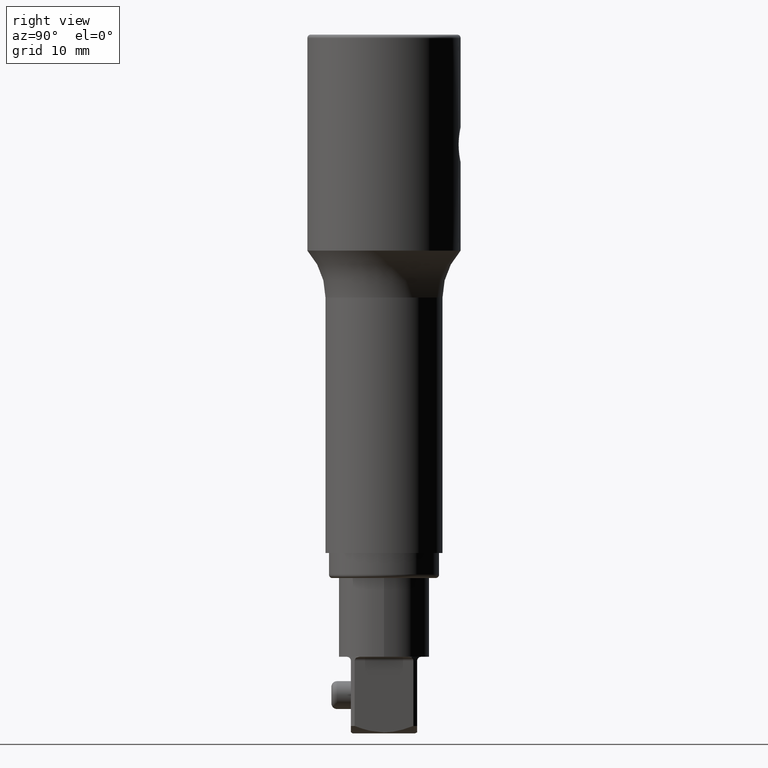
[diagram: clean part render]
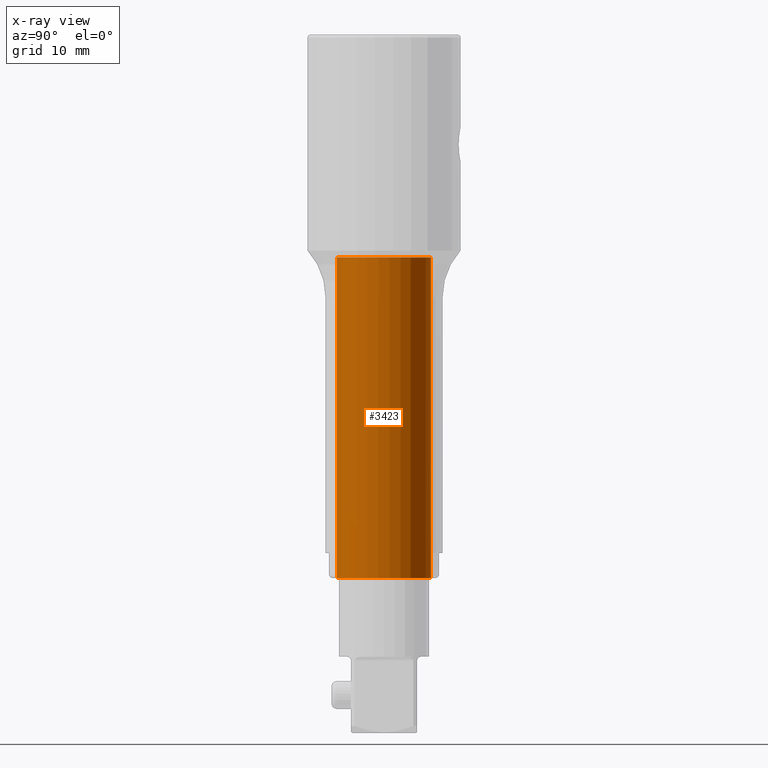
[diagram: x-ray — body ghosted, one internal face saturated and labeled with its STEP entity id]
A machine part, right view, then the same camera in x-ray: the body is ghosted and one INTERNAL B-rep face — a face not visible from any outside direction — is saturated and labeled: STEP entity #3423.
In plain terms, the highlighted cylindrical surface (partial cylindrical patch) has radius 6.75 mm, axis along (0, 0, -1).
Its self-contained STEP definition (entity closure, byte-faithful):
#2841=CARTESIAN_POINT('',(0.E0,0.E0,-7.8E1));
#2842=DIRECTION('',(0.E0,0.E0,-1.E0));
#2843=DIRECTION('',(0.E0,1.E0,0.E0));
#2844=AXIS2_PLACEMENT_3D('',#2841,#2842,#2843);
#2865=DIRECTION('',(0.E0,0.E0,-1.E0));
#2866=VECTOR('',#2865,4.6E1);
#2867=CARTESIAN_POINT('',(0.E0,6.75E0,-3.2E1));
#2868=LINE('',#2867,#2866);
#2872=DIRECTION('',(0.E0,0.E0,-1.E0));
#2873=VECTOR('',#2872,4.6E1);
#2874=CARTESIAN_POINT('',(0.E0,-6.75E0,-3.2E1));
#2875=LINE('',#2874,#2873);
#2887=CARTESIAN_POINT('',(0.E0,0.E0,-3.2E1));
#2888=DIRECTION('',(0.E0,0.E0,-1.E0));
#2889=DIRECTION('',(0.E0,1.E0,0.E0));
#2890=AXIS2_PLACEMENT_3D('',#2887,#2888,#2889);
#3108=CARTESIAN_POINT('',(0.E0,6.75E0,-3.2E1));
#3109=VERTEX_POINT('',#3108);
#3110=CARTESIAN_POINT('',(0.E0,6.75E0,-7.8E1));
#3111=VERTEX_POINT('',#3110);
#3116=CARTESIAN_POINT('',(0.E0,-6.75E0,-3.2E1));
#3117=VERTEX_POINT('',#3116);
#3118=CARTESIAN_POINT('',(0.E0,-6.75E0,-7.8E1));
#3119=VERTEX_POINT('',#3118);
#3411=CARTESIAN_POINT('',(0.E0,0.E0,3.9E0));
#3412=DIRECTION('',(0.E0,0.E0,-1.E0));
#3413=DIRECTION('',(0.E0,-1.E0,0.E0));
#3414=AXIS2_PLACEMENT_3D('',#3411,#3412,#3413);
#3415=CYLINDRICAL_SURFACE('',#3414,6.75E0);
#3416=ORIENTED_EDGE('',*,*,#3401,.F.);
#3418=ORIENTED_EDGE('',*,*,#3417,.T.);
#3419=ORIENTED_EDGE('',*,*,#3404,.T.);
#3420=ORIENTED_EDGE('',*,*,#3391,.F.);
#3421=EDGE_LOOP('',(#3416,#3418,#3419,#3420));
#3422=FACE_OUTER_BOUND('',#3421,.F.);
#3423=ADVANCED_FACE('',(#3422),#3415,.F.);
#2845=CIRCLE('',#2844,6.75E0);
#2891=CIRCLE('',#2890,6.75E0);
#3391=EDGE_CURVE('',#3111,#3119,#2845,.T.);
#3401=EDGE_CURVE('',#3109,#3111,#2868,.T.);
#3404=EDGE_CURVE('',#3117,#3119,#2875,.T.);
#3417=EDGE_CURVE('',#3109,#3117,#2891,.T.);